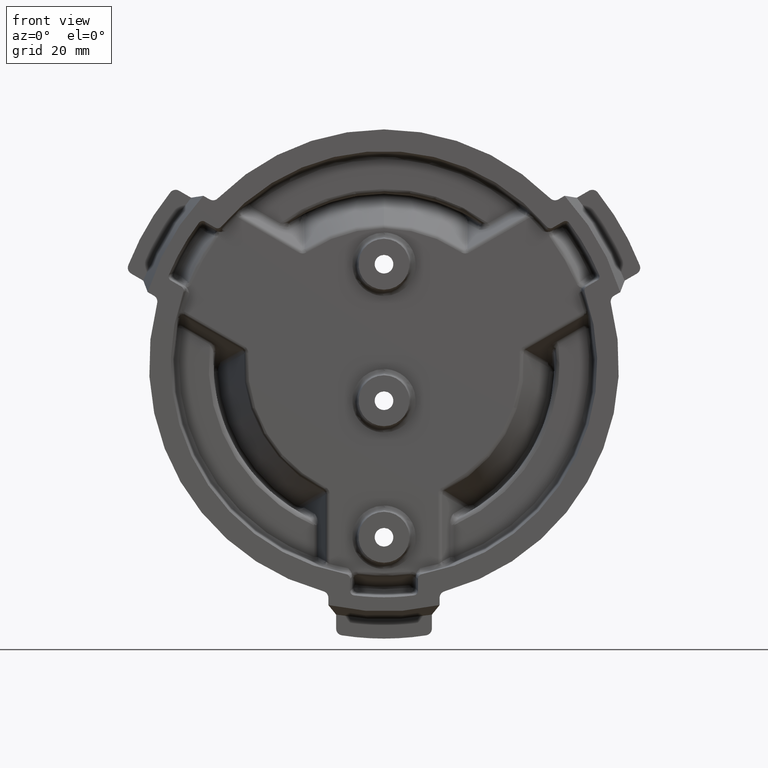
[diagram: clean part render]
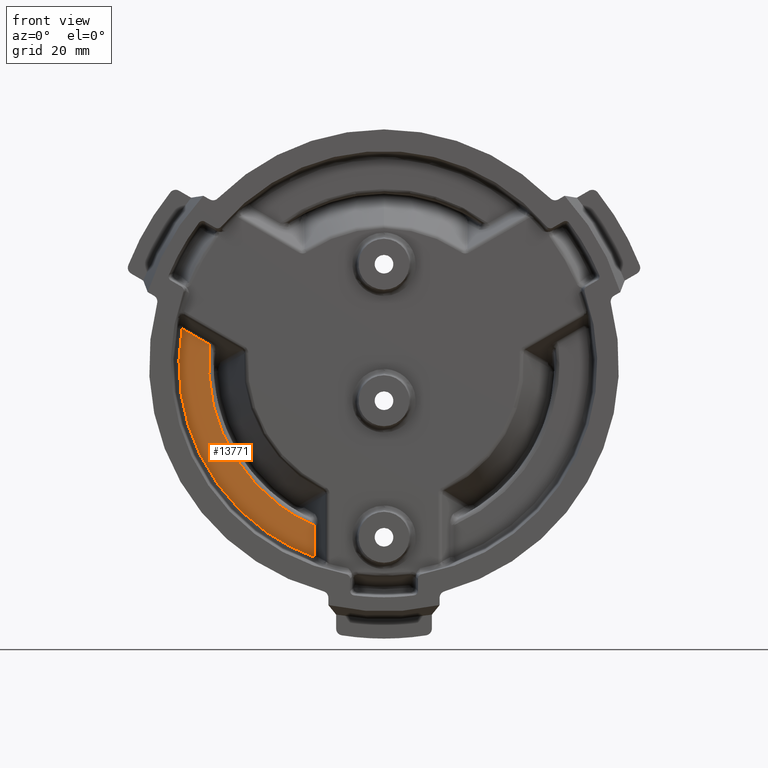
[diagram: same view with one face highlighted and labeled with its STEP entity id]
A machine part, front view. The second image highlights one B-rep face of the part: STEP entity #13771.
In plain terms, the highlighted planar face has unit normal (0, 1, 0).
Its self-contained STEP definition (entity closure, byte-faithful):
#107 = FACE_OUTER_BOUND ( 'NONE', #38202, .T. ) ;
#631 =( BOUNDED_CURVE ( )  B_SPLINE_CURVE ( 3, ( #28384, #28414, #28415, #28416 ),
 .UNSPECIFIED., .F., .T. ) 
 B_SPLINE_CURVE_WITH_KNOTS ( ( 4, 4 ),
 ( 0.0000000000000000000, 1.000000000000000000 ),
 .UNSPECIFIED. ) 
 CURVE ( )  GEOMETRIC_REPRESENTATION_ITEM ( )  RATIONAL_B_SPLINE_CURVE ( ( 0.9546552191110019300, 0.8299674923287133600, 0.8299674923287135900, 0.9546552191110017100 ) ) 
 REPRESENTATION_ITEM ( '' )  );
#855 = ORIENTED_EDGE ( 'NONE', *, *, #24760, .T. ) ;
#856 = ORIENTED_EDGE ( 'NONE', *, *, #30116, .F. ) ;
#857 = ORIENTED_EDGE ( 'NONE', *, *, #30120, .F. ) ;
#858 = ORIENTED_EDGE ( 'NONE', *, *, #30132, .F. ) ;
#5939 = VERTEX_POINT ( 'NONE', #24975 ) ;
#6006 = VERTEX_POINT ( 'NONE', #25066 ) ;
#6303 = AXIS2_PLACEMENT_3D ( 'NONE', #32096, #32102, #32103 ) ;
#7886 = CARTESIAN_POINT ( 'NONE',  ( -2.773791903143876200, 0.4999999997840035000, 0.4910372533879562900 ) ) ;
#8035 = CARTESIAN_POINT ( 'NONE',  ( -2.394147841704469900, 0.5000000001112265800, 0.2718496525355581000 ) ) ;
#13771 = ADVANCED_FACE ( 'NONE', ( #107 ), #32097, .F. ) ;
#20223 = CARTESIAN_POINT ( 'NONE',  ( -2.773791903143876200, 0.4999999997840035000, 0.4910372533879562900 ) ) ;
#20335 = CARTESIAN_POINT ( 'NONE',  ( -2.780470774725359600, 0.5000000000000001100, 0.4533061115008580900 ) ) ;
#20336 = CARTESIAN_POINT ( 'NONE',  ( -2.789328057578217100, 0.5000000000000001100, 0.3965549333284322800 ) ) ;
#20337 = CARTESIAN_POINT ( 'NONE',  ( -2.797629762827034600, 0.5000000000000001100, 0.3300749120781040200 ) ) ;
#20338 = CARTESIAN_POINT ( 'NONE',  ( -2.801272667598232700, 0.5000000000000001100, 0.2967673231073151300 ) ) ;
#20339 = CARTESIAN_POINT ( 'NONE',  ( -2.802967133020526400, 0.5000000000000001100, 0.2800966340355148200 ) ) ;
#20340 = CARTESIAN_POINT ( 'NONE',  ( -2.803666120995087900, 0.5000000000000001100, 0.2729484327362269300 ) ) ;
#20341 = CARTESIAN_POINT ( 'NONE',  ( -2.804126065979876800, 0.5000000000000001100, 0.2681821606992541600 ) ) ;
#20342 = CARTESIAN_POINT ( 'NONE',  ( -2.804347053426696300, 0.5000000000000002200, 0.2658620898432212900 ) ) ;
#20343 = CARTESIAN_POINT ( 'NONE',  ( -2.808255133116730900, 0.5000000000000000000, 0.2242561549123300900 ) ) ;
#20344 = CARTESIAN_POINT ( 'NONE',  ( -2.812539393872173700, 0.5000000000000000000, 0.1654492526423786400 ) ) ;
#20345 = CARTESIAN_POINT ( 'NONE',  ( -2.815379898704092100, 0.5000000000000000000, 0.09672025438036049900 ) ) ;
#20346 = CARTESIAN_POINT ( 'NONE',  ( -2.816260701274360600, 0.5000000000000001100, 0.06232551884591566700 ) ) ;
#20347 = CARTESIAN_POINT ( 'NONE',  ( -2.816566240098070200, 0.4999999999999999400, 0.04512059197783493300 ) ) ;
#20348 = CARTESIAN_POINT ( 'NONE',  ( -2.816668286209356600, 0.5000000000000001100, 0.03774543208418674300 ) ) ;
#20349 = CARTESIAN_POINT ( 'NONE',  ( -2.816729894928240400, 0.5000000000000001100, 0.03282829886457133000 ) ) ;
#20350 = CARTESIAN_POINT ( 'NONE',  ( -2.816756925523390600, 0.5000000000000001100, 0.03042630520473907400 ) ) ;
#20351 = CARTESIAN_POINT ( 'NONE',  ( -2.817180992066590700, 0.5000000000000001100, -0.01234024621975416500 ) ) ;
#20352 = CARTESIAN_POINT ( 'NONE',  ( -2.816486762641313000, 0.5000000000000000000, -0.07267904740564341800 ) ) ;
#20353 = CARTESIAN_POINT ( 'NONE',  ( -2.813414233004972100, 0.5000000000000001100, -0.1430086787176994300 ) ) ;
#20354 = CARTESIAN_POINT ( 'NONE',  ( -2.811312319360087300, 0.5000000000000001100, -0.1781570851891909300 ) ) ;
#20355 = CARTESIAN_POINT ( 'NONE',  ( -2.810119950330968000, 0.5000000000000002200, -0.1957271861288023300 ) ) ;
#20356 = CARTESIAN_POINT ( 'NONE',  ( -2.809578632417056200, 0.5000000000000002200, -0.2032563503251782800 ) ) ;
#20357 = CARTESIAN_POINT ( 'NONE',  ( -2.809211019893177700, 0.5000000000000001100, -0.2082755977753273400 ) ) ;
#20358 = CARTESIAN_POINT ( 'NONE',  ( -2.809027576062391100, 0.5000000000000001100, -0.2107360075017904700 ) ) ;
#20359 = CARTESIAN_POINT ( 'NONE',  ( -2.805724993457456900, 0.4999999999999999400, -0.2542312674448612400 ) ) ;
#20360 = CARTESIAN_POINT ( 'NONE',  ( -2.799726066953300400, 0.5000000000000000000, -0.3154811126222427100 ) ) ;
#20361 = CARTESIAN_POINT ( 'NONE',  ( -2.790388519712681000, 0.5000000000000001100, -0.3866676168831960100 ) ) ;
#20362 = CARTESIAN_POINT ( 'NONE',  ( -2.785135046179260800, 0.5000000000000001100, -0.4221929569021747300 ) ) ;
#20363 = CARTESIAN_POINT ( 'NONE',  ( -2.782758264683557100, 0.5000000000000001100, -0.4374035500292731700 ) ) ;
#20364 = CARTESIAN_POINT ( 'NONE',  ( -2.781145900833416700, 0.5000000000000003300, -0.4475407115372675400 ) ) ;
#20365 = CARTESIAN_POINT ( 'NONE',  ( -2.780339015641860800, 0.5000000000000002200, -0.4525273964681618700 ) ) ;
#20366 = CARTESIAN_POINT ( 'NONE',  ( -2.772713829199027200, 0.5000000000000000000, -0.4988380278760986600 ) ) ;
#20367 = CARTESIAN_POINT ( 'NONE',  ( -2.761186347587731400, 0.5000000000000001100, -0.5603043443797175400 ) ) ;
#20368 = CARTESIAN_POINT ( 'NONE',  ( -2.745356627921385200, 0.5000000000000001100, -0.6315229608967516400 ) ) ;
#20369 = CARTESIAN_POINT ( 'NONE',  ( -2.736846520308255900, 0.5000000000000001100, -0.6670092476376393600 ) ) ;
#20370 = CARTESIAN_POINT ( 'NONE',  ( -2.733071778235496300, 0.5000000000000002200, -0.6821912944870987000 ) ) ;
#20371 = CARTESIAN_POINT ( 'NONE',  ( -2.730526938387942200, 0.5000000000000002200, -0.6923068008858989100 ) ) ;
#20372 = CARTESIAN_POINT ( 'NONE',  ( -2.729255891894363900, 0.5000000000000000000, -0.6973012476554965000 ) ) ;
#20373 = CARTESIAN_POINT ( 'NONE',  ( -2.717409092421463800, 0.5000000000000001100, -0.7433116990569839100 ) ) ;
#20374 = CARTESIAN_POINT ( 'NONE',  ( -2.700250468466724100, 0.5000000000000000000, -0.8042474903075662600 ) ) ;
#20375 = CARTESIAN_POINT ( 'NONE',  ( -2.677847014035498400, 0.5000000000000001100, -0.8746191615182950000 ) ) ;
#20376 = CARTESIAN_POINT ( 'NONE',  ( -2.667734449318394800, 0.4999999999999999400, -0.9046241451982612900 ) ) ;
#20377 = CARTESIAN_POINT ( 'NONE',  ( -2.660879165229975500, 0.5000000000000001100, -0.9245931778778441200 ) ) ;
#20378 = CARTESIAN_POINT ( 'NONE',  ( -2.657422792854992700, 0.5000000000000001100, -0.9344817143858367100 ) ) ;
#20379 = CARTESIAN_POINT ( 'NONE',  ( -2.639576427210182300, 0.5000000000000001100, -0.9846270219408287400 ) ) ;
#20380 = CARTESIAN_POINT ( 'NONE',  ( -2.616818675492322400, 0.5000000000000001100, -1.044259844039581200 ) ) ;
#20381 = CARTESIAN_POINT ( 'NONE',  ( -2.592047754358331300, 0.4999999999999999400, -1.103080345687476700 ) ) ;
#20382 = CARTESIAN_POINT ( 'NONE',  ( -2.575086435954308400, 0.5000000000000000000, -1.142113497796995100 ) ) ;
#20383 = CARTESIAN_POINT ( 'NONE',  ( -2.566416176197281900, 0.5000000000000001100, -1.161465995890976100 ) ) ;
#20384 = CARTESIAN_POINT ( 'NONE',  ( -2.521605600602086400, 0.5000000000000001100, -1.258515398550569500 ) ) ;
#20385 = CARTESIAN_POINT ( 'NONE',  ( -2.482281950151857200, 0.5000000000000002200, -1.334400640849892300 ) ) ;
#20386 = CARTESIAN_POINT ( 'NONE',  ( -2.418145635382737500, 0.5000000000000001100, -1.445489789435241000 ) ) ;
#20387 = CARTESIAN_POINT ( 'NONE',  ( -2.384845448079070600, 0.5000000000000001100, -1.500252348421508900 ) ) ;
#20388 = CARTESIAN_POINT ( 'NONE',  ( -2.343839177199689100, 0.5000000000000001100, -1.562773473785942000 ) ) ;
#20389 = CARTESIAN_POINT ( 'NONE',  ( -2.325803049888861600, 0.5000000000000001100, -1.589274986059369300 ) ) ;
#20390 = CARTESIAN_POINT ( 'NONE',  ( -2.313676295855049400, 0.5000000000000000000, -1.606877492966118500 ) ) ;
#20391 = CARTESIAN_POINT ( 'NONE',  ( -2.307534086476253200, 0.5000000000000001100, -1.615685121445357600 ) ) ;
#20392 = CARTESIAN_POINT ( 'NONE',  ( -2.276841344501732600, 0.5000000000000001100, -1.659170754016411100 ) ) ;
#20393 = CARTESIAN_POINT ( 'NONE',  ( -2.238863392779889300, 0.5000000000000000000, -1.710470499853106200 ) ) ;
#20394 = CARTESIAN_POINT ( 'NONE',  ( -2.192549125071009600, 0.5000000000000001100, -1.768774930144256800 ) ) ;
#20395 = CARTESIAN_POINT ( 'NONE',  ( -2.168890326874886000, 0.4999999999999999400, -1.797540826993582600 ) ) ;
#20396 = CARTESIAN_POINT ( 'NONE',  ( -2.158643342431902000, 0.5000000000000000000, -1.809786286008383300 ) ) ;
#20397 = CARTESIAN_POINT ( 'NONE',  ( -2.151788130691736800, 0.5000000000000001100, -1.817931529242238900 ) ) ;
#20398 = CARTESIAN_POINT ( 'NONE',  ( -2.148319140707482400, 0.5000000000000002200, -1.822029533557628000 ) ) ;
#20399 = CARTESIAN_POINT ( 'NONE',  ( -2.117520646398924500, 0.5000000000000002200, -1.858206336347663100 ) ) ;
#20400 = CARTESIAN_POINT ( 'NONE',  ( -2.075410898959757100, 0.5000000000000001100, -1.905475334737784600 ) ) ;
#20401 = CARTESIAN_POINT ( 'NONE',  ( -2.024453955648822100, 0.5000000000000002200, -1.958930706865558800 ) ) ;
#20402 = CARTESIAN_POINT ( 'NONE',  ( -1.998518257835377300, 0.5000000000000001100, -1.985235444764269700 ) ) ;
#20403 = CARTESIAN_POINT ( 'NONE',  ( -1.987304981738619700, 0.5000000000000001100, -1.996418272114036700 ) ) ;
#20404 = CARTESIAN_POINT ( 'NONE',  ( -1.979807691666592100, 0.5000000000000001100, -2.003853349958397300 ) ) ;
#20405 = CARTESIAN_POINT ( 'NONE',  ( -1.976001118520080100, 0.5000000000000001100, -2.007606949432775500 ) ) ;
#20406 = CARTESIAN_POINT ( 'NONE',  ( -1.942490735088890000, 0.5000000000000001100, -2.040468359513574200 ) ) ;
#20407 = CARTESIAN_POINT ( 'NONE',  ( -1.896878555400907600, 0.5000000000000001100, -2.083252935818717500 ) ) ;
#20408 = CARTESIAN_POINT ( 'NONE',  ( -1.842033925983734200, 0.4999999999999999400, -2.131364659853524700 ) ) ;
#20409 = CARTESIAN_POINT ( 'NONE',  ( -1.814204006329849900, 0.5000000000000001100, -2.154969618123963500 ) ) ;
#20410 = CARTESIAN_POINT ( 'NONE',  ( -1.802189553989907100, 0.5000000000000001100, -2.164989406579802500 ) ) ;
#20411 = CARTESIAN_POINT ( 'NONE',  ( -1.794160509337311400, 0.5000000000000001100, -2.171647793943362700 ) ) ;
#20412 = CARTESIAN_POINT ( 'NONE',  ( -1.790070669748297300, 0.5000000000000000000, -2.175020052312887300 ) ) ;
#20413 = CARTESIAN_POINT ( 'NONE',  ( -1.754355792425519800, 0.5000000000000000000, -2.204305346564732200 ) ) ;
#20414 = CARTESIAN_POINT ( 'NONE',  ( -1.705924974681401800, 0.5000000000000000000, -2.242278844642261200 ) ) ;
#20415 = CARTESIAN_POINT ( 'NONE',  ( -1.648003136680871400, 0.5000000000000001100, -2.284702527447421500 ) ) ;
#20416 = CARTESIAN_POINT ( 'NONE',  ( -1.618687413355841500, 0.5000000000000001100, -2.305444685945344100 ) ) ;
#20417 = CARTESIAN_POINT ( 'NONE',  ( -1.603940850612135500, 0.5000000000000001100, -2.315698344468142300 ) ) ;
#20418 = CARTESIAN_POINT ( 'NONE',  ( -1.597601887776006500, 0.5000000000000001100, -2.320067607965163000 ) ) ;
#20419 = CARTESIAN_POINT ( 'NONE',  ( -1.593371688690910600, 0.5000000000000001100, -2.322974858833358500 ) ) ;
#20420 = CARTESIAN_POINT ( 'NONE',  ( -1.591212391007776900, 0.5000000000000001100, -2.324454444063143800 ) ) ;
#20421 = CARTESIAN_POINT ( 'NONE',  ( -1.555899358718702200, 0.5000000000000001100, -2.348582177605807800 ) ) ;
#20422 = CARTESIAN_POINT ( 'NONE',  ( -1.505358071205826800, 0.5000000000000001100, -2.381549299851450000 ) ) ;
#20423 = CARTESIAN_POINT ( 'NONE',  ( -1.445189944752556200, 0.5000000000000002200, -2.418093711766422100 ) ) ;
#20424 = CARTESIAN_POINT ( 'NONE',  ( -1.414805058770525000, 0.5000000000000002200, -2.435886610047672400 ) ) ;
#20425 = CARTESIAN_POINT ( 'NONE',  ( -1.399537410090660300, 0.5000000000000001100, -2.444663232269238300 ) ) ;
#20426 = CARTESIAN_POINT ( 'NONE',  ( -1.392978016580250100, 0.5000000000000001100, -2.448398964595825500 ) ) ;
#20427 = CARTESIAN_POINT ( 'NONE',  ( -1.388601506350032100, 0.5000000000000000000, -2.450883746769785700 ) ) ;
#20428 = CARTESIAN_POINT ( 'NONE',  ( -1.386360536343047600, 0.5000000000000001100, -2.452152017498268500 ) ) ;
#20429 = CARTESIAN_POINT ( 'NONE',  ( -1.349965031354479500, 0.5000000000000001100, -2.472687207955390300 ) ) ;
#20430 = CARTESIAN_POINT ( 'NONE',  ( -1.298017216603633700, 0.5000000000000001100, -2.500580417575945200 ) ) ;
#20431 = CARTESIAN_POINT ( 'NONE',  ( -1.236421063356006900, 0.5000000000000002200, -2.531201612349680600 ) ) ;
#20432 = CARTESIAN_POINT ( 'NONE',  ( -1.205375394389285300, 0.5000000000000001100, -2.546031988957318900 ) ) ;
#20433 = CARTESIAN_POINT ( 'NONE',  ( -1.189790661820196800, 0.5000000000000001100, -2.553327122066330300 ) ) ;
#20434 = CARTESIAN_POINT ( 'NONE',  ( -1.183098226843646300, 0.5000000000000001100, -2.556427881571306000 ) ) ;
#20435 = CARTESIAN_POINT ( 'NONE',  ( -1.178633655998054100, 0.5000000000000002200, -2.558489337660583300 ) ) ;
#20436 = CARTESIAN_POINT ( 'NONE',  ( -1.176340759079997500, 0.5000000000000001100, -2.559544326047082000 ) ) ;
#20437 = CARTESIAN_POINT ( 'NONE',  ( -1.104529616840660000, 0.5000000000000001100, -2.592474772993926400 ) ) ;
#20438 = CARTESIAN_POINT ( 'NONE',  ( -1.033689800817789500, 0.5000000000000002200, -2.621524993660004000 ) ) ;
#20439 = CARTESIAN_POINT ( 'NONE',  ( -0.9616452158820931700, 0.4999999999997764000, -2.647692880037193900 ) ) ;
#24760 = EDGE_CURVE ( 'NONE', #41974, #6006, #29731, .T. ) ;
#24975 = CARTESIAN_POINT ( 'NONE',  ( -0.9616452163113568000, 0.5000000000888127300, -2.209317677325152800 ) ) ;
#25066 = CARTESIAN_POINT ( 'NONE',  ( -0.9616452158820931700, 0.4999999999997764000, -2.647692880037193900 ) ) ;
#28339 = CARTESIAN_POINT ( 'NONE',  ( -0.9616452160000004100, 0.5000000000000001100, -1.078327813000000200 ) ) ;
#28379 = DIRECTION ( 'NONE',  ( -0.0000000000000000000, -0.0000000000000000000, -1.000000000000000000 ) ) ;
#28384 = CARTESIAN_POINT ( 'NONE',  ( -2.394147841704469900, 0.5000000001112265800, 0.2718496525355581000 ) ) ;
#28414 = CARTESIAN_POINT ( 'NONE',  ( -2.518080469016740400, 0.5000000002664383200, -0.8196103902895306400 ) ) ;
#28415 = CARTESIAN_POINT ( 'NONE',  ( -1.968843653992400400, 0.5000000002664382000, -1.770916460265438400 ) ) ;
#28416 = CARTESIAN_POINT ( 'NONE',  ( -0.9616452163113568000, 0.5000000000888127300, -2.209317677325152800 ) ) ;
#28510 = CARTESIAN_POINT ( 'NONE',  ( -2.773791903113297600, 0.5000000000537369000, 0.4910372535405546600 ) ) ;
#28511 = DIRECTION ( 'NONE',  ( 0.8660254037854981900, 0.0000000000000000000, -0.4999999999981648000 ) ) ;
#29731 = B_SPLINE_CURVE_WITH_KNOTS ( 'NONE', 3,
 ( #20223, #20335, #20336, #20337, #20338, #20339, #20340, #20341, #20342, #20343, #20344, #20345, #20346, #20347, #20348, #20349, #20350, #20351, #20352, #20353, #20354, #20355, #20356, #20357, #20358, #20359, #20360, #20361, #20362, #20363, #20364, #20365, #20366, #20367, #20368, #20369, #20370, #20371, #20372, #20373, #20374, #20375, #20376, #20377, #20378, #20379, #20380, #20381, #20382, #20383, #20384, #20385, #20386, #20387, #20388, #20389, #20390, #20391, #20392, #20393, #20394, #20395, #20396, #20397, #20398, #20399, #20400, #20401, #20402, #20403, #20404, #20405, #20406, #20407, #20408, #20409, #20410, #20411, #20412, #20413, #20414, #20415, #20416, #20417, #20418, #20419, #20420, #20421, #20422, #20423, #20424, #20425, #20426, #20427, #20428, #20429, #20430, #20431, #20432, #20433, #20434, #20435, #20436, #20437, #20438, #20439 ),
 .UNSPECIFIED., .F., .F.,
 ( 4, 1, 1, 1, 1, 2, 2, 1, 1, 1, 1, 2, 2, 1, 1, 1, 1, 2, 2, 1, 1, 1, 2, 2, 1, 1, 1, 2, 2, 1, 1, 2, 2, 1, 2, 2, 2, 1, 1, 2, 2, 1, 1, 1, 2, 2, 1, 1, 1, 2, 2, 1, 1, 1, 2, 2, 1, 1, 1, 1, 2, 2, 1, 1, 1, 1, 2, 2, 1, 1, 1, 1, 2, 2, 4 ),
 ( 0.0000000000000000000, 0.03125000000000122800, 0.04687500000000187400, 0.05468750000000219300, 0.05859375000000235200, 0.06054687500000245600, 0.06250000000000255400, 0.09375000000000373300, 0.1093750000000043300, 0.1171875000000046400, 0.1210937500000047900, 0.1230468750000048600, 0.1250000000000049400, 0.1562500000000061100, 0.1718750000000066900, 0.1796875000000069700, 0.1835937500000071300, 0.1855468750000071900, 0.1875000000000072200, 0.2187500000000078000, 0.2343750000000080500, 0.2421875000000081900, 0.2460937500000082700, 0.2500000000000083800, 0.2812500000000091600, 0.2968750000000094900, 0.3046875000000096600, 0.3085937500000096600, 0.3125000000000097100, 0.3437500000000102100, 0.3593750000000104900, 0.3671875000000106000, 0.3750000000000106600, 0.4062500000000111000, 0.4218750000000113200, 0.4375000000000115500, 0.5000000000000129900, 0.5312500000000137700, 0.5468750000000143200, 0.5546875000000145400, 0.5625000000000148800, 0.5937500000000157700, 0.6093750000000163200, 0.6171875000000165400, 0.6210937500000167600, 0.6250000000000168800, 0.6562500000000167600, 0.6718750000000167600, 0.6796875000000168800, 0.6835937500000168800, 0.6875000000000168800, 0.7187500000000175400, 0.7343750000000179900, 0.7421875000000182100, 0.7460937500000182100, 0.7500000000000182100, 0.7812500000000183200, 0.7968750000000183200, 0.8046875000000184300, 0.8085937500000183200, 0.8105468750000183200, 0.8125000000000183200, 0.8437500000000163200, 0.8593750000000154300, 0.8671875000000149900, 0.8710937500000147700, 0.8730468750000146500, 0.8750000000000145400, 0.9062500000000112100, 0.9218750000000094400, 0.9296875000000085500, 0.9335937500000079900, 0.9355468750000077700, 0.9375000000000075500, 1.000000000000000000 ),
 .UNSPECIFIED. ) ;
#30116 = EDGE_CURVE ( 'NONE', #5939, #6006, #35629, .T. ) ;
#30120 = EDGE_CURVE ( 'NONE', #42223, #5939, #631, .T. ) ;
#30132 = EDGE_CURVE ( 'NONE', #41974, #42223, #35624, .T. ) ;
#32096 = CARTESIAN_POINT ( 'NONE',  ( -2.828051795000000400, 0.5000000000000001100, -2.666525261000000800 ) ) ;
#32097 = PLANE ( 'NONE',  #6303 ) ;
#32102 = DIRECTION ( 'NONE',  ( 0.0000000000000000000, 1.000000000000000000, 0.0000000000000000000 ) ) ;
#32103 = DIRECTION ( 'NONE',  ( 0.0000000000000000000, 0.0000000000000000000, 1.000000000000000000 ) ) ;
#35619 = VECTOR ( 'NONE', #28511, 39.37007874015748100 ) ;
#35624 = LINE ( 'NONE', #28510, #35619 ) ;
#35629 = LINE ( 'NONE', #28339, #35630 ) ;
#35630 = VECTOR ( 'NONE', #28379, 39.37007874015748100 ) ;
#38202 = EDGE_LOOP ( 'NONE', ( #855, #856, #857, #858 ) ) ;
#41974 = VERTEX_POINT ( 'NONE', #7886 ) ;
#42223 = VERTEX_POINT ( 'NONE', #8035 ) ;